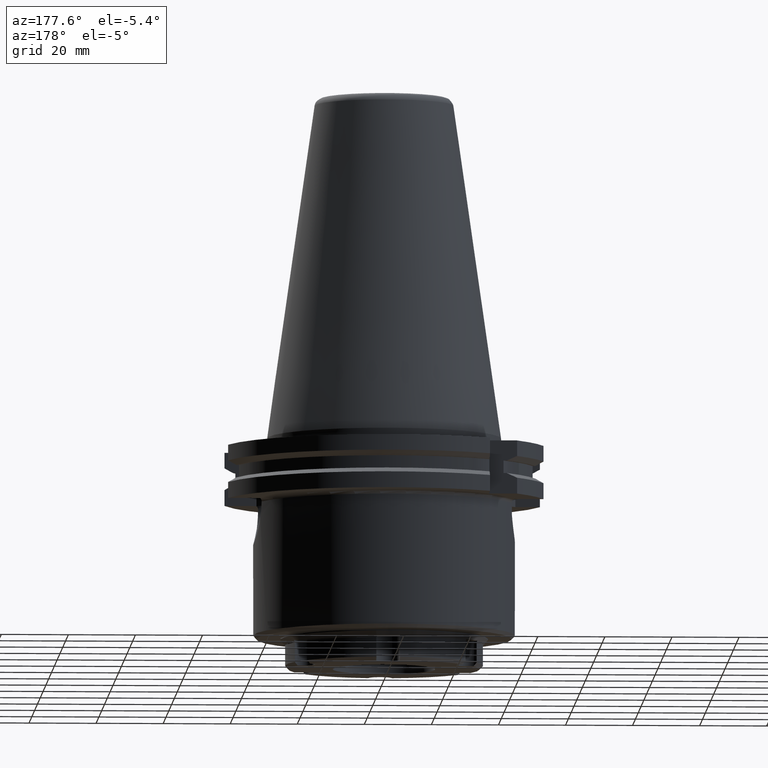
[diagram: clean part render]
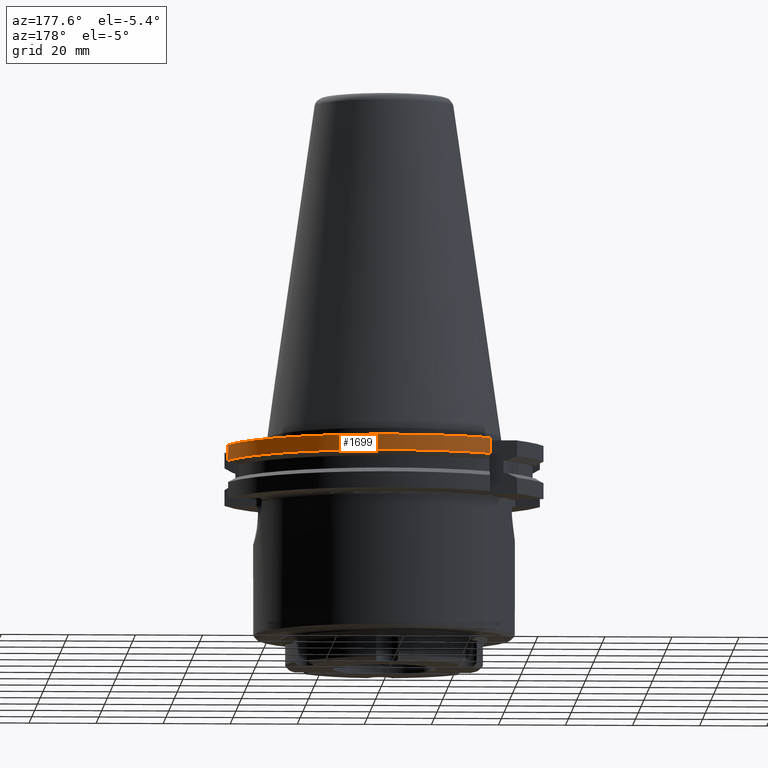
[diagram: same view with one face highlighted and labeled with its STEP entity id]
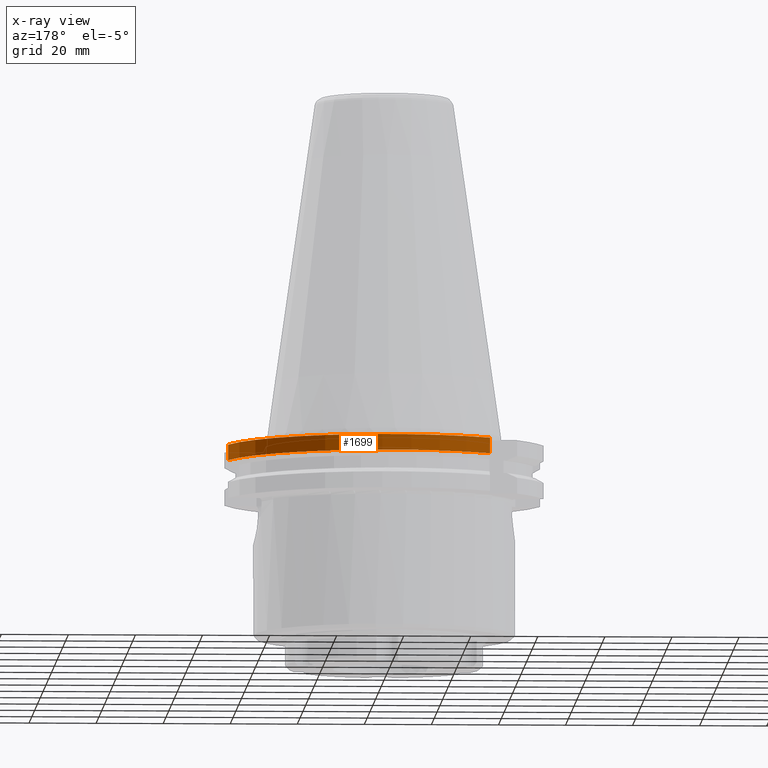
[diagram: x-ray of the same camera — body ghosted, the highlighted face saturated]
A machine part, auxiliary view. The second image highlights one B-rep face of the part: STEP entity #1699.
The next image is the same camera in x-ray: the body ghosted, the highlighted face saturated — about 0% of this face is hidden behind the body in this view.
In plain terms, the highlighted cylindrical surface (partial cylindrical patch) has radius 48.75 mm, axis along (0, 0, -1).
Its self-contained STEP definition (entity closure, byte-faithful):
#100=LINE('',#2946,#200);
#101=LINE('',#2950,#201);
#200=VECTOR('',#2282,1000.);
#201=VECTOR('',#2287,1000.);
#250=CYLINDRICAL_SURFACE('',#1883,48.75);
#347=CIRCLE('',#1837,48.75);
#372=CIRCLE('',#1884,48.75);
#720=ORIENTED_EDGE('',*,*,#1083,.F.);
#721=ORIENTED_EDGE('',*,*,#1084,.T.);
#722=ORIENTED_EDGE('',*,*,#1085,.T.);
#723=ORIENTED_EDGE('',*,*,#1013,.F.);
#1013=EDGE_CURVE('',#1222,#1224,#347,.T.);
#1083=EDGE_CURVE('',#1274,#1222,#100,.T.);
#1084=EDGE_CURVE('',#1274,#1275,#372,.T.);
#1085=EDGE_CURVE('',#1275,#1224,#101,.T.);
#1222=VERTEX_POINT('',#2769);
#1224=VERTEX_POINT('',#2772);
#1274=VERTEX_POINT('',#2945);
#1275=VERTEX_POINT('',#2949);
#1450=EDGE_LOOP('',(#720,#721,#722,#723));
#1567=FACE_BOUND('',#1450,.T.);
#1699=ADVANCED_FACE('',(#1567),#250,.T.);
#1837=AXIS2_PLACEMENT_3D('',#2771,#2156,#2157);
#1883=AXIS2_PLACEMENT_3D('',#2947,#2283,#2284);
#1884=AXIS2_PLACEMENT_3D('',#2948,#2285,#2286);
#2156=DIRECTION('',(0.,2.22044604925031E-16,-1.));
#2157=DIRECTION('',(-1.,0.,0.));
#2282=DIRECTION('',(0.,2.22044604925031E-16,-1.));
#2283=DIRECTION('',(0.,2.22044604925031E-16,-1.));
#2284=DIRECTION('',(-1.,0.,0.));
#2285=DIRECTION('',(0.,2.22044604925031E-16,-1.));
#2286=DIRECTION('',(-1.,0.,0.));
#2287=DIRECTION('',(0.,2.22044604925031E-16,-1.));
#2769=CARTESIAN_POINT('',(-30.,38.4260653723485,-7.85240473580834));
#2771=CARTESIAN_POINT('',(0.,1.74358410727401E-15,-7.85240473580835));
#2772=CARTESIAN_POINT('',(47.025950282796,12.85,-7.85240473580835));
#2945=CARTESIAN_POINT('',(-30.,38.4260653723485,-3.19999999999999));
#2946=CARTESIAN_POINT('',(-30.,38.4260653723485,-60.));
#2947=CARTESIAN_POINT('',(0.,1.33226762955019E-14,-60.));
#2948=CARTESIAN_POINT('',(0.,7.10542735760101E-16,-3.2));
#2949=CARTESIAN_POINT('',(47.025950282796,12.85,-3.2));
#2950=CARTESIAN_POINT('',(47.025950282796,12.85,-60.));